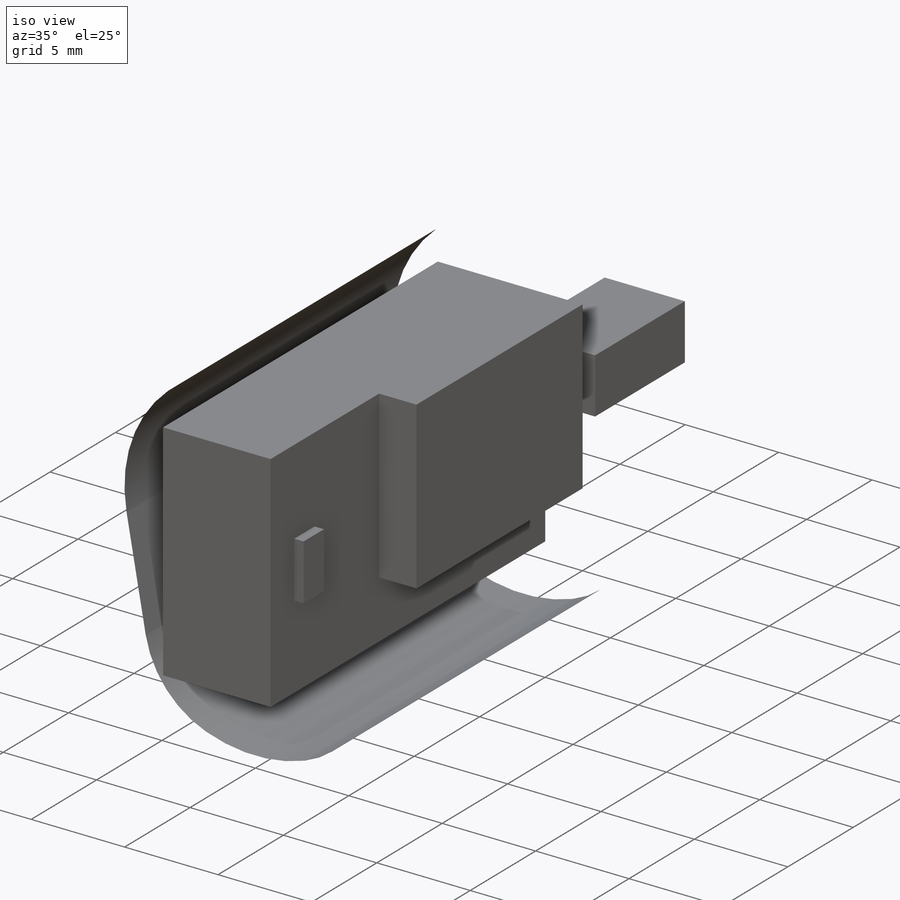
[diagram: iso view]
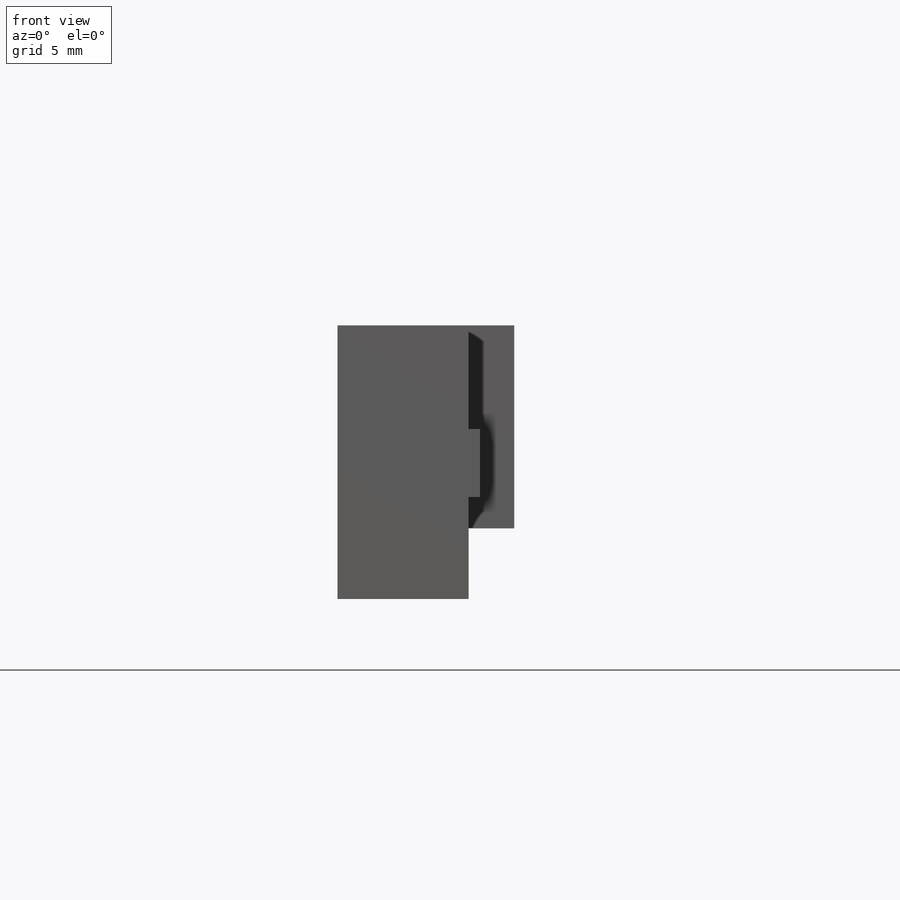
[diagram: front view]
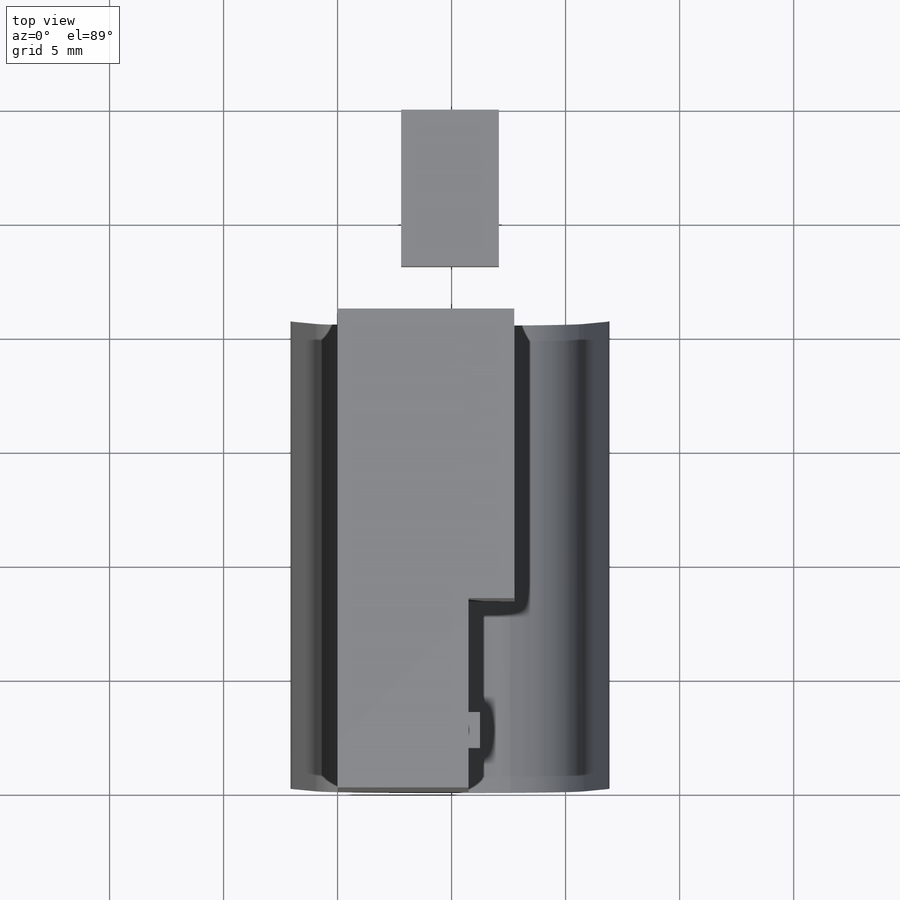
[diagram: top view]
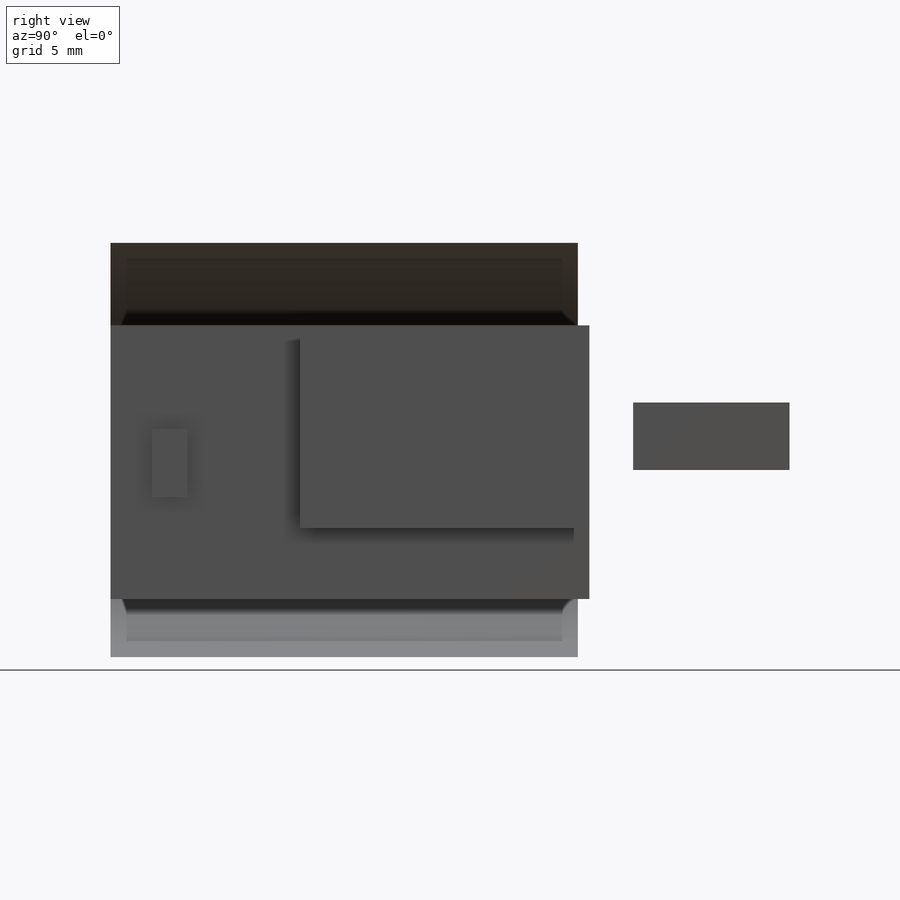
[diagram: right view]
SOLIDWORKS PART (.sldprt)
format: sldprt  version: not decoded by parser v0  size: 207,360 bytes
history: native  units: mm
features: sketch x7, extrude x5, material x1, plane x1, surface_op x1 (+12 scaffold rows collapsed)
feature tree (27):
  scaffold x12  (default folders/planes/origin — collapsed)
  material  "Material <not specified>"
  sketch  "Sketch1"  dims[D1=21.0mm D2=12.0mm]
  extrude  "battery"  Depth=5mm
  plane  "Plane1"  Offset=1.92mm
  sketch  "Sketch2"  dims[D1=4.29mm D2=2.96mm]
  extrude  "driver"  Depth=6.86mm
  sketch  "Sketch3"
  sketch  "Sketch6"
  extrude  "pcb board"  Depth=0.75mm
  sketch  "Sketch7"  dims[D1=12.7mm D2=8.9mm]
  extrude  "KLR device"  Depth=2mm
  sketch  "Sketch8"  dims[D1=3.0mm D2=1.55mm]
  extrude  "antenna"  Depth=0.5mm
  sketch  "Sketch9"  dims[D1=14.0mm D2=5.0mm]
  surface_op  "Surface-Extrude1"
decode coverage: 10 of 13 modeling features carry decoded parameters
note: suppression state not decoded; provenance and decode notes live in map.json
